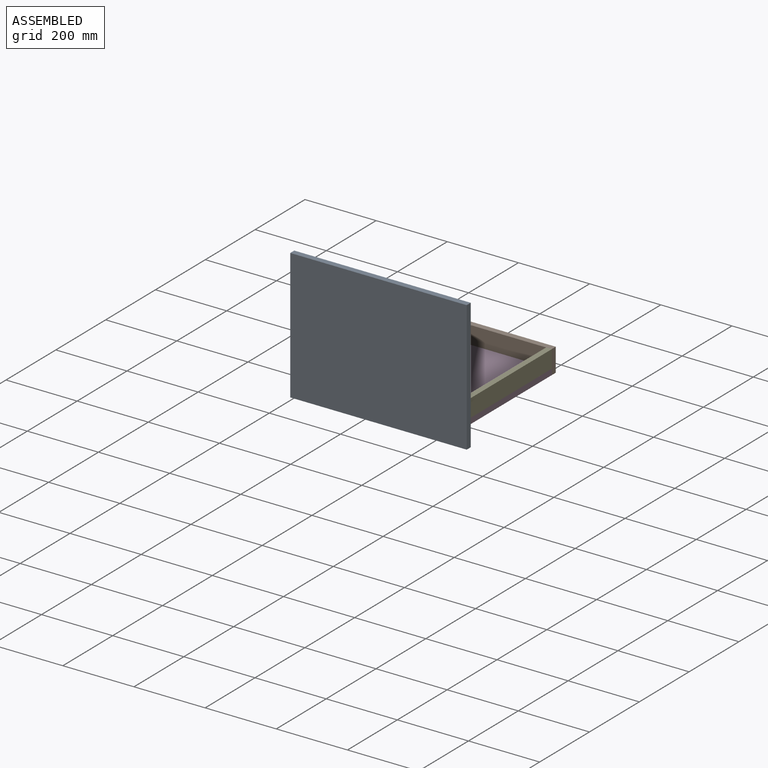
[diagram: assembled view]
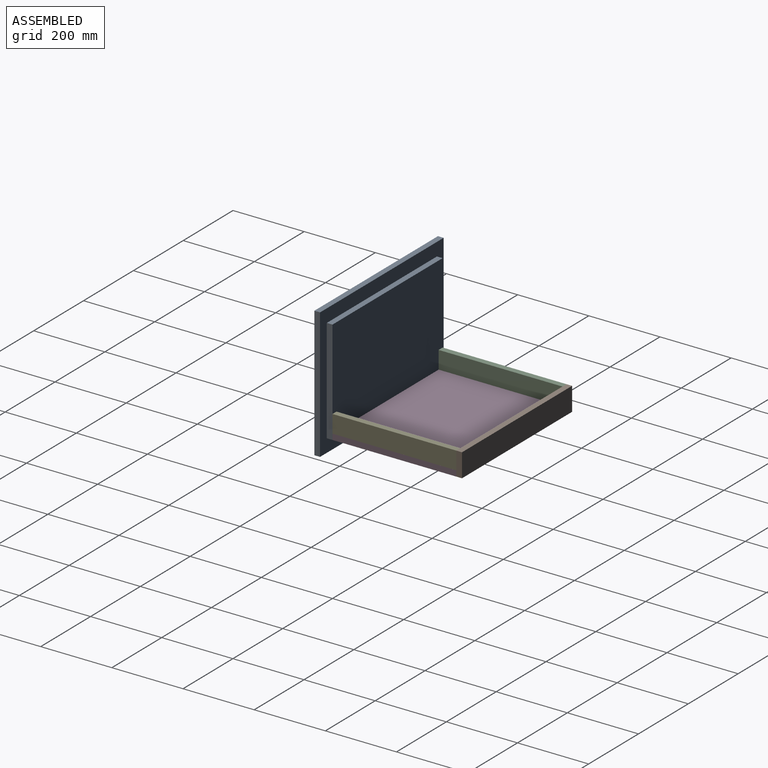
[diagram: assembled view, second angle]
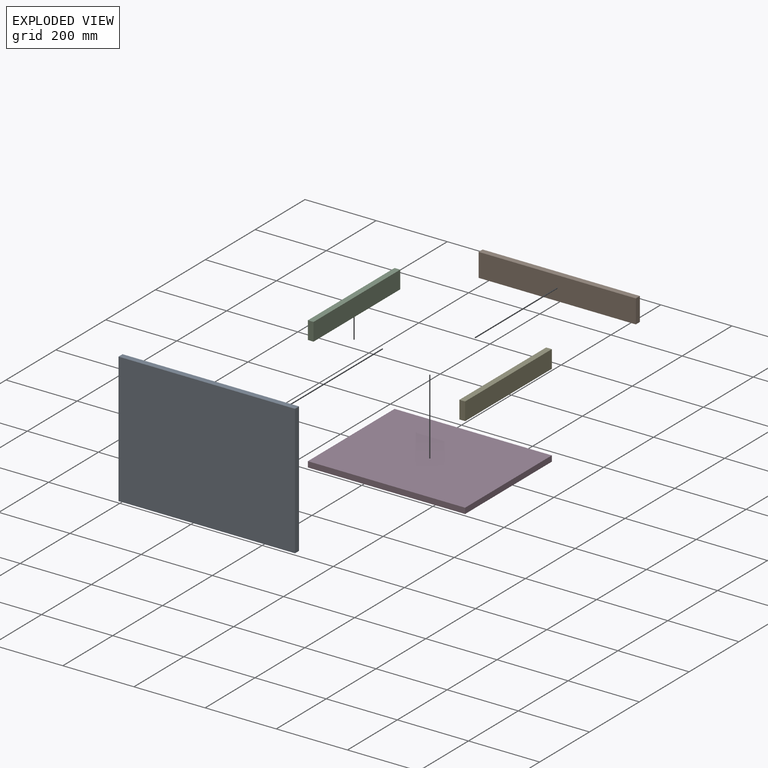
[diagram: exploded view]
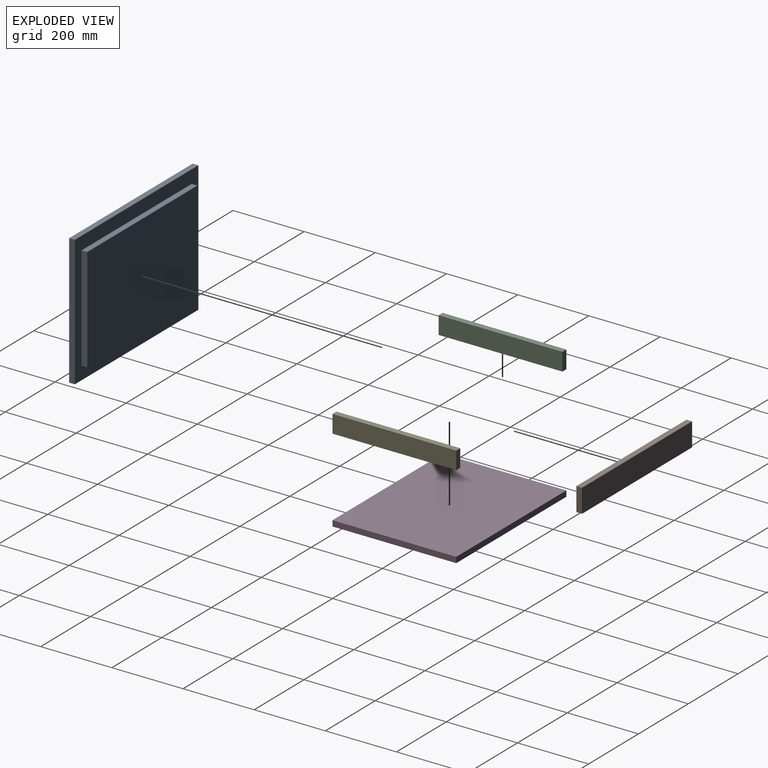
[diagram: exploded view, second angle]
ASSEMBLY  parts=5 mates=4
PART A: 11 faces, bbox 496x32x367 mm
  f0: plane 496x16mm, normal (0,0,1), area 7936mm2, adj f1,f3,f4,f5
  f1: plane 367x16mm, normal (-1,0,0), area 5872mm2, adj f0,f2,f4,f5
  f2: plane 496x16mm, normal (0,0,-1), area 7936mm2, adj f1,f3,f4,f5
  f3: plane 367x16mm, normal (1,0,0), area 5872mm2, adj f0,f2,f4,f5
  f4: plane 496x367mm, normal (0,-1,0), area 182032mm2, adj f0,f1,f2,f3
  f5: plane 496x367mm, normal (0,1,0), area 52526mm2, adj f0,f1,f2,f3,f6,f7,f8,f9
  f6: plane 442x16mm, normal (0,0,-1), area 7072mm2, adj f5,f7,f9,f10
  f7: plane 293x16mm, normal (-1,0,0), area 4688mm2, adj f5,f6,f8,f10
  f8: plane 442x16mm, normal (0,0,1), area 7072mm2, adj f5,f7,f9,f10
  f9: plane 293x16mm, normal (1,0,0), area 4688mm2, adj f5,f6,f8,f10
  f10: plane 442x293mm, normal (0,1,0), area 129506mm2, adj f6,f7,f8,f9
PART B: 6 faces, bbox 442x16x66 mm
  f0: plane 442x16mm, normal (0,0,1), area 7072mm2, adj f1,f3,f4,f5
  f1: plane 66x16mm, normal (1,0,0), area 1056mm2, adj f0,f2,f4,f5
  f2: plane 442x16mm, normal (0,0,-1), area 7072mm2, adj f1,f3,f4,f5
  f3: plane 66x16mm, normal (-1,0,0), area 1056mm2, adj f0,f2,f4,f5
  f4: plane 442x66mm, normal (0,1,0), area 29172mm2, adj f0,f1,f2,f3
  f5: plane 442x66mm, normal (0,-1,0), area 29172mm2, adj f0,f1,f2,f3
PART C: 6 faces, bbox 16x348x50 mm
  f0: plane 348x16mm, normal (0,0,1), area 5568mm2, adj f1,f3,f4,f5
  f1: plane 50x16mm, normal (0,1,0), area 800mm2, adj f0,f2,f4,f5
  f2: plane 348x16mm, normal (0,0,-1), area 5568mm2, adj f1,f3,f4,f5
  f3: plane 50x16mm, normal (0,-1,0), area 800mm2, adj f0,f2,f4,f5
  f4: plane 348x50mm, normal (1,0,0), area 17400mm2, adj f0,f1,f2,f3
  f5: plane 348x50mm, normal (-1,0,0), area 17400mm2, adj f0,f1,f2,f3
PART D: 6 faces, bbox 442x348x16 mm
  f0: plane 442x16mm, normal (0,-1,0), area 7072mm2, adj f1,f3,f4,f5
  f1: plane 348x16mm, normal (-1,0,0), area 5568mm2, adj f0,f2,f4,f5
  f2: plane 442x16mm, normal (0,1,0), area 7072mm2, adj f1,f3,f4,f5
  f3: plane 348x16mm, normal (1,0,0), area 5568mm2, adj f0,f2,f4,f5
  f4: plane 442x348mm, normal (0,0,1), area 153816mm2, adj f0,f1,f2,f3
  f5: plane 442x348mm, normal (0,0,-1), area 153816mm2, adj f0,f1,f2,f3
PART E: 6 faces, bbox 16x348x50 mm
  f0: plane 348x16mm, normal (0,0,1), area 5568mm2, adj f1,f3,f4,f5
  f1: plane 50x16mm, normal (0,1,0), area 800mm2, adj f0,f2,f4,f5
  f2: plane 348x16mm, normal (0,0,-1), area 5568mm2, adj f1,f3,f4,f5
  f3: plane 50x16mm, normal (0,-1,0), area 800mm2, adj f0,f2,f4,f5
  f4: plane 348x50mm, normal (-1,0,0), area 17400mm2, adj f0,f1,f2,f3
  f5: plane 348x50mm, normal (1,0,0), area 17400mm2, adj f0,f1,f2,f3
PLACE A t=(-74.72,-427.21,326.99)mm
PLACE B t=(-74.72,-427.21,326.99)mm
PLACE C t=(-74.72,-427.21,326.99)mm
PLACE D t=(-74.72,-427.21,326.99)mm
PLACE E t=(-74.72,-427.21,326.99)mm
MATE fastened D.f0 <-> A.f10  axis (0,-1,0) through (-322.72,-411.21,366.99)mm
MATE fastened E.f2 <-> D.f4  axis (0,0,-1) through (-109.72,-237.21,374.99)mm
MATE fastened B.f5 <-> D.f2  axis (0,-1,0) through (-322.72,-63.21,391.99)mm
MATE fastened C.f2 <-> D.f4  axis (0,0,-1) through (-535.72,-237.21,374.99)mm
